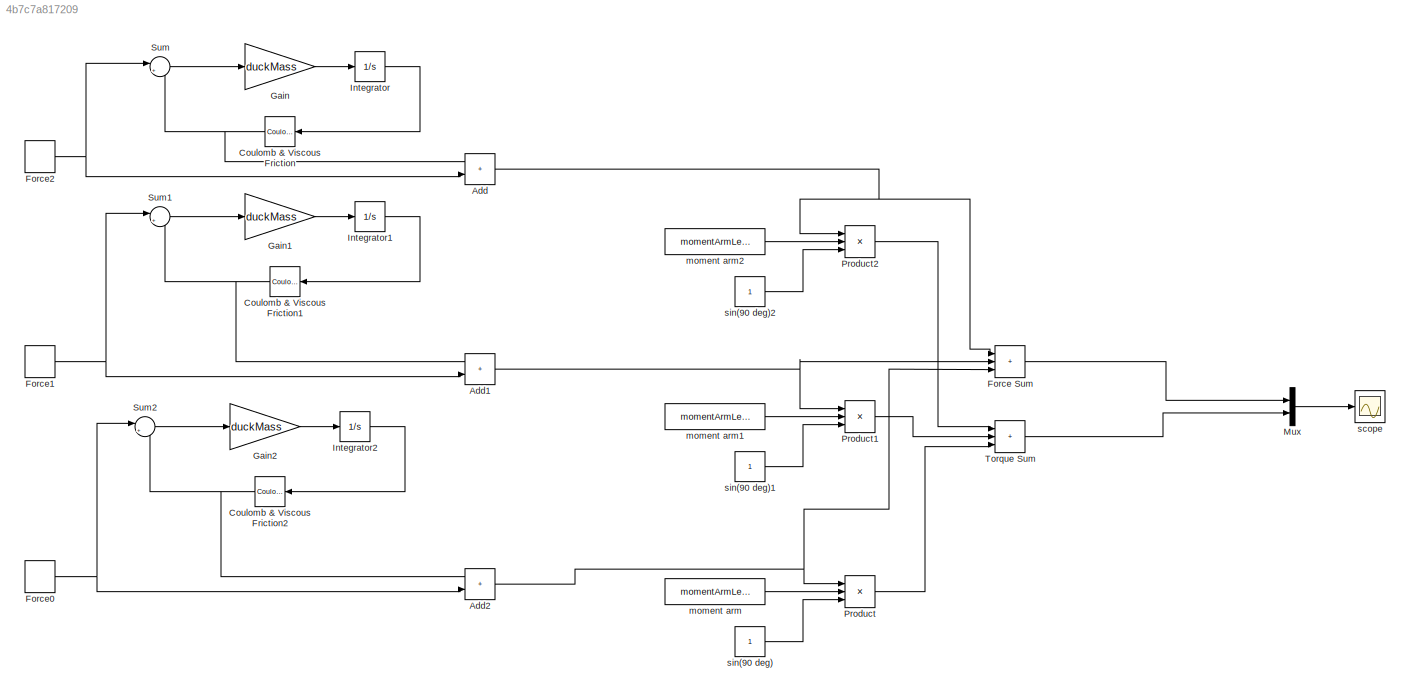
MODEL slx_4b7c7a817209
KIND model
CONFIG AbsTol = auto
CONFIG EnableMultiTasking = off
CONFIG FixedStep = 1e-6
CONFIG MaxStep = auto
CONFIG MinStep = auto
CONFIG RelTol = 1e-3
CONFIG SampleTimeConstraint = Unconstrained
CONFIG SolverName = FixedStepAuto
CONFIG StartTime = 0.0
CONFIG StopTime = 3.0
BLOCK [Sum] Add
  IconShape = rectangular
  Ports = [2, 1]
BLOCK [Sum] Add1
  IconShape = rectangular
  Ports = [2, 1]
BLOCK [Sum] Add2
  IconShape = rectangular
  Ports = [2, 1]
BLOCK [Reference] Coulomb & Viscous Friction  REF=simulink/Discontinuities/Coulomb &
Viscous Friction
  Ports = [1, 1]
  SourceBlock = simulink/Discontinuities/Coulomb &\nViscous Friction
  SourceProductBaseCode = SL
  SourceType = Coulombic and Viscous Friction
BLOCK [Reference] Coulomb & Viscous Friction1  REF=simulink/Discontinuities/Coulomb &
Viscous Friction
  Ports = [1, 1]
  SourceBlock = simulink/Discontinuities/Coulomb &\nViscous Friction
  SourceProductBaseCode = SL
  SourceType = Coulombic and Viscous Friction
BLOCK [Reference] Coulomb & Viscous Friction2  REF=simulink/Discontinuities/Coulomb &
Viscous Friction
  Ports = [1, 1]
  SourceBlock = simulink/Discontinuities/Coulomb &\nViscous Friction
  SourceProductBaseCode = SL
  SourceType = Coulombic and Viscous Friction
BLOCK [Sum] Force Sum
  IconShape = rectangular
  Inputs = +++
  Ports = [3, 1]
BLOCK [DiscretePulseGenerator] Force0
  Amplitude = 9.8*duckWeight
  Period = forcePeriod
  PhaseDelay = phase0
  Ports = [0, 1]
  PulseType = Time based
  PulseWidth = forcePulseWidthPercent
BLOCK [DiscretePulseGenerator] Force1
  Amplitude = 9.8*duckWeight
  Period = forcePeriod
  PhaseDelay = phase1
  Ports = [0, 1]
  PulseType = Time based
  PulseWidth = forcePulseWidthPercent
BLOCK [DiscretePulseGenerator] Force2
  Amplitude = 9.8*duckWeight
  Period = forcePeriod
  PhaseDelay = phase2
  Ports = [0, 1]
  PulseType = Time based
  PulseWidth = forcePulseWidthPercent
BLOCK [Gain] Gain
  Gain = duckMass
BLOCK [Gain] Gain1
  Gain = duckMass
BLOCK [Gain] Gain2
  Gain = duckMass
BLOCK [Integrator] Integrator
  Ports = [1, 1]
BLOCK [Integrator] Integrator1
  Ports = [1, 1]
BLOCK [Integrator] Integrator2
  Ports = [1, 1]
BLOCK [Mux] Mux
  DisplayOption = bar
  Inputs = 2
  Ports = [2, 1]
BLOCK [Product] Product
  Inputs = 3
  Ports = [3, 1]
BLOCK [Product] Product1
  Inputs = 3
  Ports = [3, 1]
BLOCK [Product] Product2
  Inputs = 3
  Ports = [3, 1]
BLOCK [Sum] Sum
  Inputs = |+-
  Ports = [2, 1]
BLOCK [Sum] Sum1
  Inputs = |+-
  Ports = [2, 1]
BLOCK [Sum] Sum2
  Inputs = |+-
  Ports = [2, 1]
BLOCK [Sum] Torque Sum
  IconShape = rectangular
  Inputs = +++
  Ports = [3, 1]
BLOCK [Constant] moment arm
  Value = momentArmLength
BLOCK [Constant] moment arm1
  Value = momentArmLength
BLOCK [Constant] moment arm2
  Value = momentArmLength
BLOCK [Scope] scope
  Floating = off
  NumInputPorts = 1
  Ports = [1]
  ScopeSpecificationString = Simulink.scopes.TimeScopeBlockCfg('CurrentConfiguration', extmgr.ConfigurationSet(extmgr.Configuration('Core','General UI',true),extmgr.Configuration('Core','Source UI',true),extmgr.Configuration('Sources','WiredSimulink',true),extmgr.Configuration('Visuals','Time Domain',true,'SerializedDisplays',{struct('MinYLimReal','0.1321736','MaxYLimReal','0.132179','YLabelReal','','MinYLimMag','0.1321736','...<+1411ch>
BLOCK [Constant] sin(90 deg)
BLOCK [Constant] sin(90 deg)1
BLOCK [Constant] sin(90 deg)2
NET Add1:1 -> Force Sum:2, Product1:1
NET Add2:1 -> Force Sum:3, Product:1
NET Add:1 -> Force Sum:1, Product2:1
NET Coulomb & Viscous Friction1:1 -> Add1:1, Sum1:2
NET Coulomb & Viscous Friction2:1 -> Add2:1, Sum2:2
NET Coulomb & Viscous Friction:1 -> Add:1, Sum:2
LINE Force Sum:1 -> Mux:1
NET Force0:1 -> Add2:2, Sum2:1
NET Force1:1 -> Add1:2, Sum1:1
NET Force2:1 -> Add:2, Sum:1
LINE Gain1:1 -> Integrator1:1
LINE Gain2:1 -> Integrator2:1
LINE Gain:1 -> Integrator:1
LINE Integrator1:1 -> Coulomb & Viscous Friction1:1
LINE Integrator2:1 -> Coulomb & Viscous Friction2:1
LINE Integrator:1 -> Coulomb & Viscous Friction:1
LINE Mux:1 -> scope:1
LINE Product1:1 -> Torque Sum:2
LINE Product2:1 -> Torque Sum:1
LINE Product:1 -> Torque Sum:3
LINE Sum1:1 -> Gain1:1
LINE Sum2:1 -> Gain2:1
LINE Sum:1 -> Gain:1
LINE Torque Sum:1 -> Mux:2
LINE moment arm1:1 -> Product1:2
LINE moment arm2:1 -> Product2:2
LINE moment arm:1 -> Product:2
LINE sin(90 deg)1:1 -> Product1:3
LINE sin(90 deg)2:1 -> Product2:3
LINE sin(90 deg):1 -> Product:3
note: NET lines group one-source signal fan-out (src -> all destinations, sorted); 1:1 wires keep LINE
